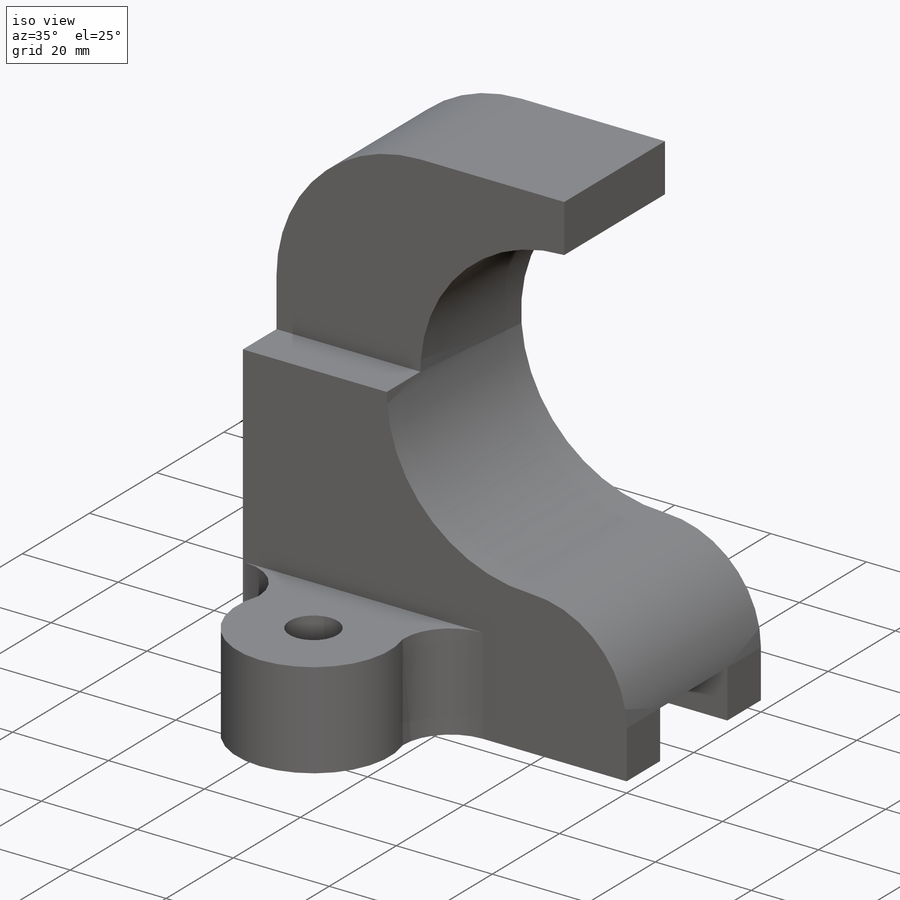
[diagram: iso view]
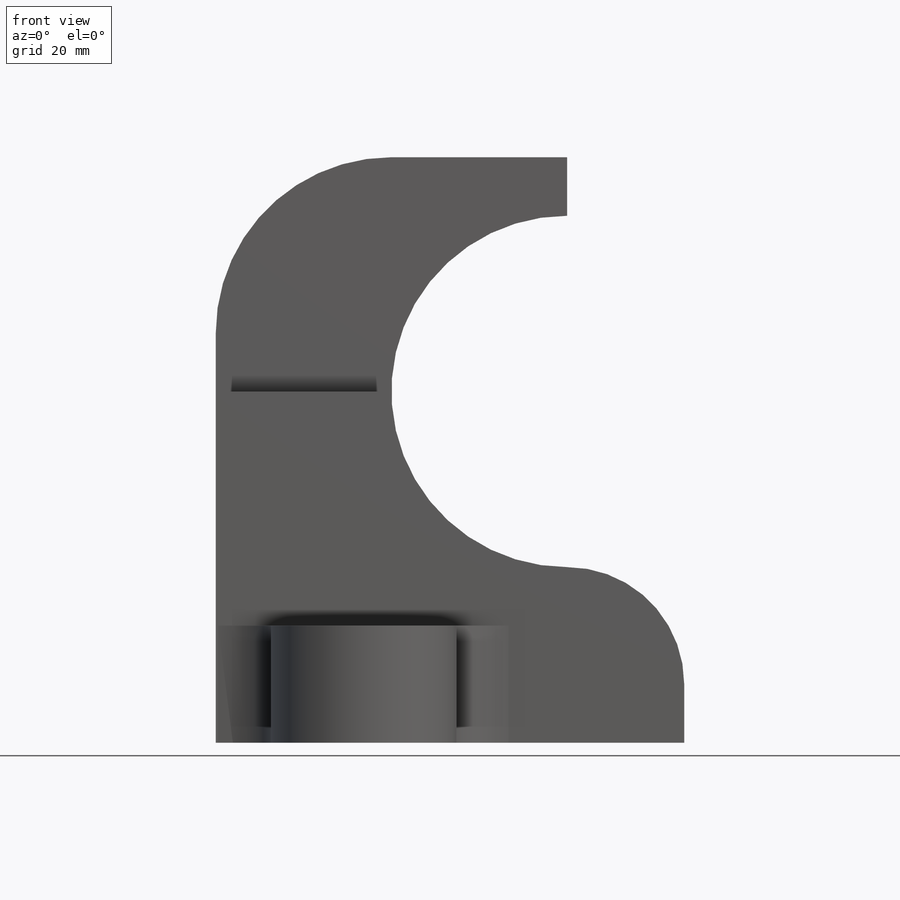
[diagram: front view]
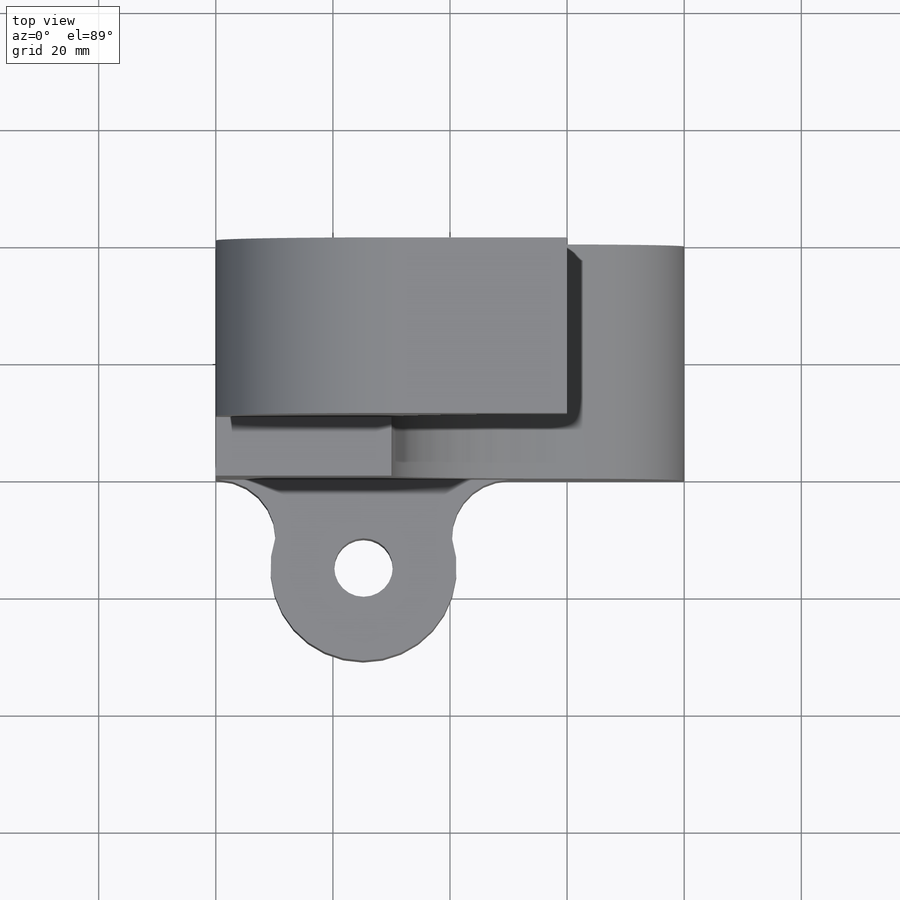
[diagram: top view]
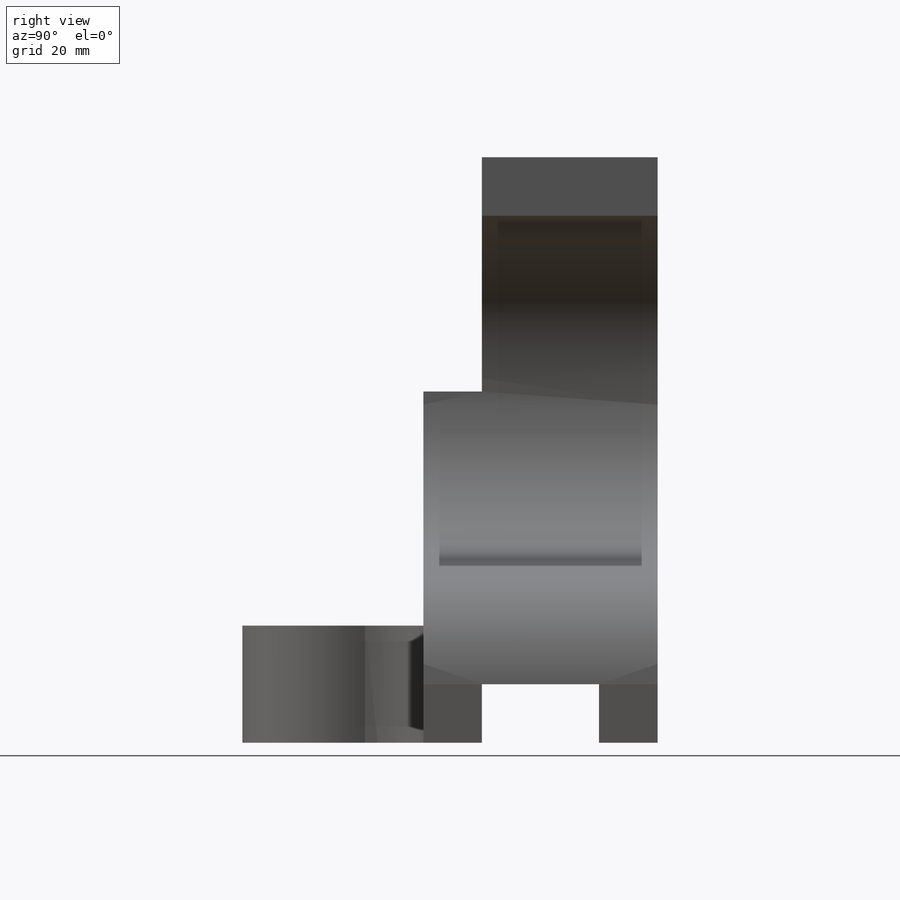
[diagram: right view]
SOLIDWORKS PART (.sldprt)
format: sldprt  version: not decoded by parser v0  size: 441,856 bytes
history: native  units: mm
features: sketch x5, cut_extrude x3, extrude x2, material x1 (+13 scaffold rows collapsed)
feature tree (24):
  scaffold x13  (default folders/planes/origin — collapsed)
  material  "Material <not specified>"
  sketch  "Sketch1"  dims[D1=40.0mm D2=80.0mm]
  extrude  "Boss-Extrude1"  Depth=100mm
  sketch  "Sketch2"  dims[c1.D1=~20.490177mm c1.D5=30.0mm c2.D1=10.0mm c2.D2=10.0mm c2.D3=20.0mm c2.D4=20.0mm c2.D6=30.0mm c2.D7=70.0mm]
  cut_extrude  "Cut-Extrude1"  Depth=100mm
  sketch  "Sketch4"  dims[c1.D1=18.2366mm c1.D2=~32.315254mm c2.D1=10.0mm c2.D2=~15.840811mm c3.D1=~73.253294mm c3.D2=~100.113924mm c4.D1=10.0mm c4.D2=10.0mm]
  cut_extrude  "Cut-Extrude2"  Depth=100mm
  sketch  "Sketch5"  dims[D1=40.0mm D2=10.0mm]
  cut_extrude  "Cut-Extrude3"  Depth=100mm
  sketch  "Sketch7"  dims[c1.D1=10.0mm c1.D4=~15.689523mm c1.D5=~9.798062mm c1.D6=~7.598678mm c2.D1=~27.450979mm c2.D2=25.0mm c2.D3=15.0mm c2.D4=30.0mm c2.D5=10.0mm c2.D6=50.0mm]
  extrude  "Boss-Extrude2"  Depth=20mm
decode coverage: 10 of 10 modeling features carry decoded parameters
note: ~ marks probable driven/reference dimensions
note: suppression state not decoded; provenance and decode notes live in map.json
